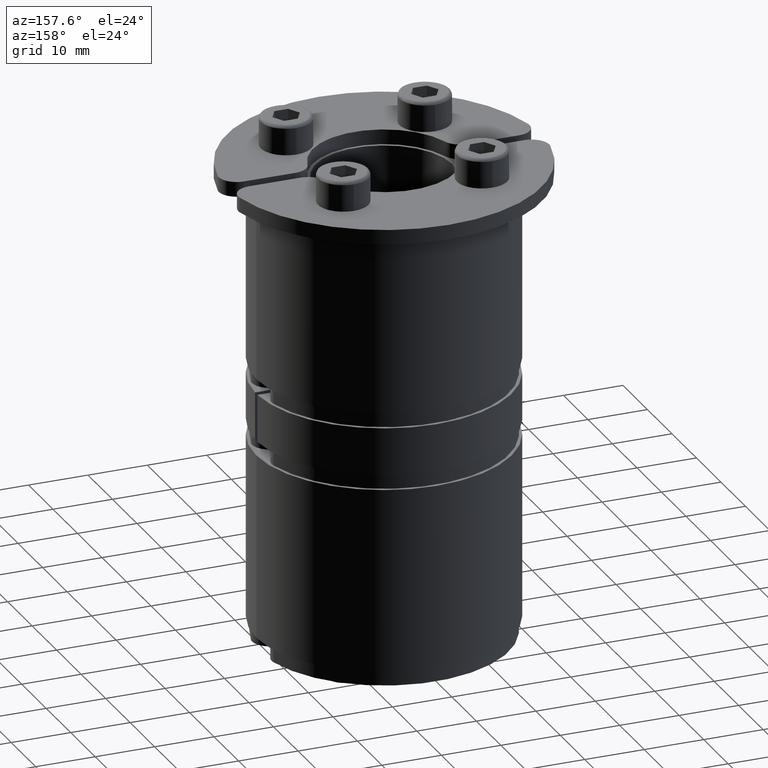
[diagram: clean part render]
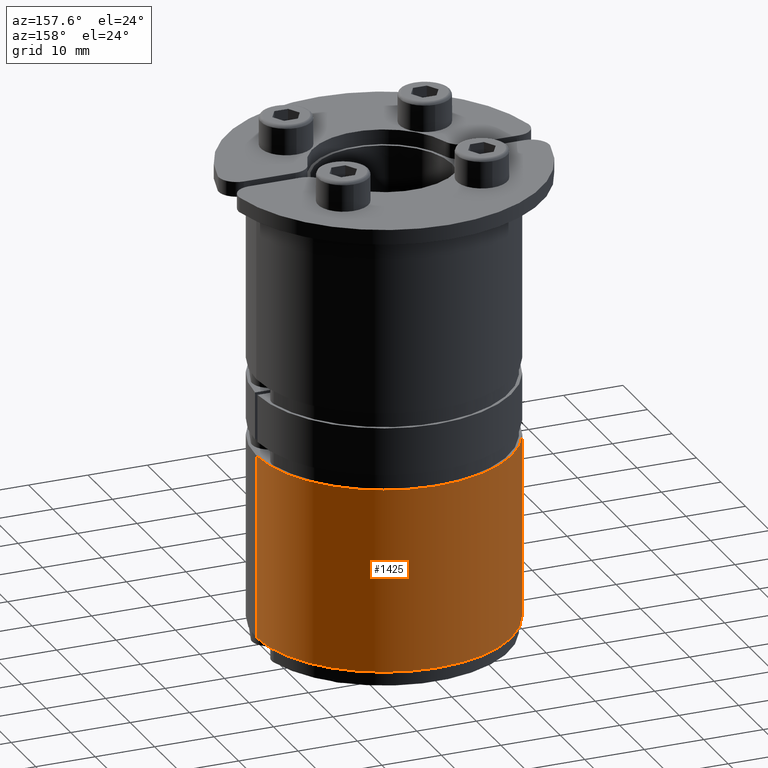
[diagram: same view with one face highlighted and labeled with its STEP entity id]
A machine part, auxiliary view. The second image highlights one B-rep face of the part: STEP entity #1425.
In plain terms, the highlighted cylindrical surface (partial cylindrical patch) has radius 21.5 mm, axis along (0, 0, 1).
Its self-contained STEP definition (entity closure, byte-faithful):
#1360=CARTESIAN_POINT('',(-23.311900403481559,-7.914786200968386,15.500000000000000));
#1361=VERTEX_POINT('',#1360);
#1368=CARTESIAN_POINT('',(-23.311900403481559,-7.914786200968386,-15.500000000000000));
#1369=VERTEX_POINT('',#1368);
#1370=CARTESIAN_POINT('',(-23.311900403481559,-7.914786200968386,-15.500000000000000));
#1371=DIRECTION('',(0.0,0.0,1.0));
#1372=VECTOR('',#1371,31.0);
#1373=LINE('',#1370,#1372);
#1374=EDGE_CURVE('',#1369,#1361,#1373,.T.);
#1393=CARTESIAN_POINT('',(-1.811900403481559,-7.914786200968386,-15.500000000000000));
#1394=DIRECTION('',(0.0,0.0,1.0));
#1395=DIRECTION('',(1.0,0.0,0.0));
#1396=AXIS2_PLACEMENT_3D('',#1393,#1394,#1395);
#1397=CYLINDRICAL_SURFACE('',#1396,21.500000000000000);
#1398=CARTESIAN_POINT('',(19.688099596518441,-7.914786200968386,15.500000000000000));
#1399=VERTEX_POINT('',#1398);
#1400=CARTESIAN_POINT('',(-1.811900403481559,-7.914786200968386,15.500000000000000));
#1401=DIRECTION('',(0.0,0.0,-1.0));
#1402=DIRECTION('',(1.0,0.0,0.0));
#1403=AXIS2_PLACEMENT_3D('',#1400,#1401,#1402);
#1404=CIRCLE('',#1403,21.500000000000000);
#1405=EDGE_CURVE('',#1361,#1399,#1404,.T.);
#1406=ORIENTED_EDGE('',*,*,#1405,.T.);
#1407=CARTESIAN_POINT('',(19.688099596518441,-7.914786200968386,-15.500000000000000));
#1408=VERTEX_POINT('',#1407);
#1409=CARTESIAN_POINT('',(19.688099596518441,-7.914786200968386,-15.500000000000000));
#1410=DIRECTION('',(0.0,0.0,1.0));
#1411=VECTOR('',#1410,31.0);
#1412=LINE('',#1409,#1411);
#1413=EDGE_CURVE('',#1408,#1399,#1412,.T.);
#1414=ORIENTED_EDGE('',*,*,#1413,.F.);
#1415=CARTESIAN_POINT('',(-1.811900403481559,-7.914786200968386,-15.500000000000000));
#1416=DIRECTION('',(0.0,0.0,-1.0));
#1417=DIRECTION('',(1.0,0.0,0.0));
#1418=AXIS2_PLACEMENT_3D('',#1415,#1416,#1417);
#1419=CIRCLE('',#1418,21.500000000000000);
#1420=EDGE_CURVE('',#1369,#1408,#1419,.T.);
#1421=ORIENTED_EDGE('',*,*,#1420,.F.);
#1422=ORIENTED_EDGE('',*,*,#1374,.T.);
#1423=EDGE_LOOP('',(#1406,#1414,#1421,#1422));
#1424=FACE_OUTER_BOUND('',#1423,.T.);
#1425=ADVANCED_FACE('',(#1424),#1397,.T.);